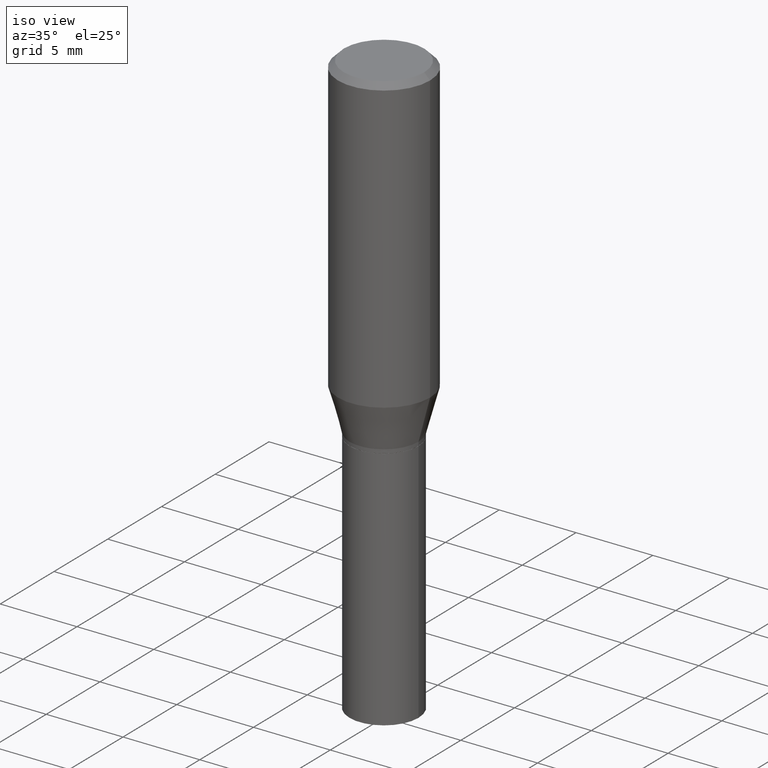
[diagram: clean part render]
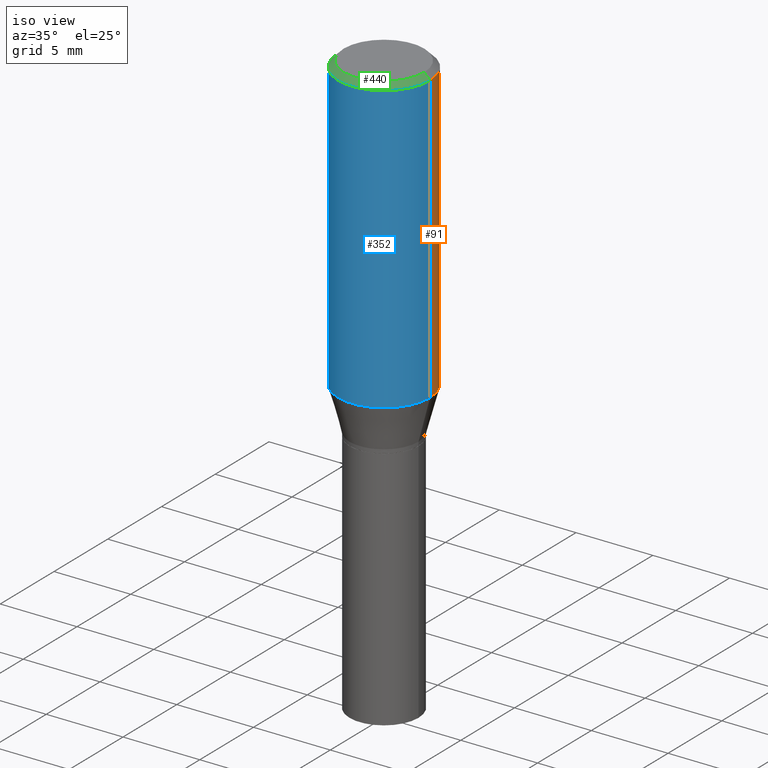
[diagram: same view with three faces highlighted in distinct colors, each labeled with its STEP entity id]
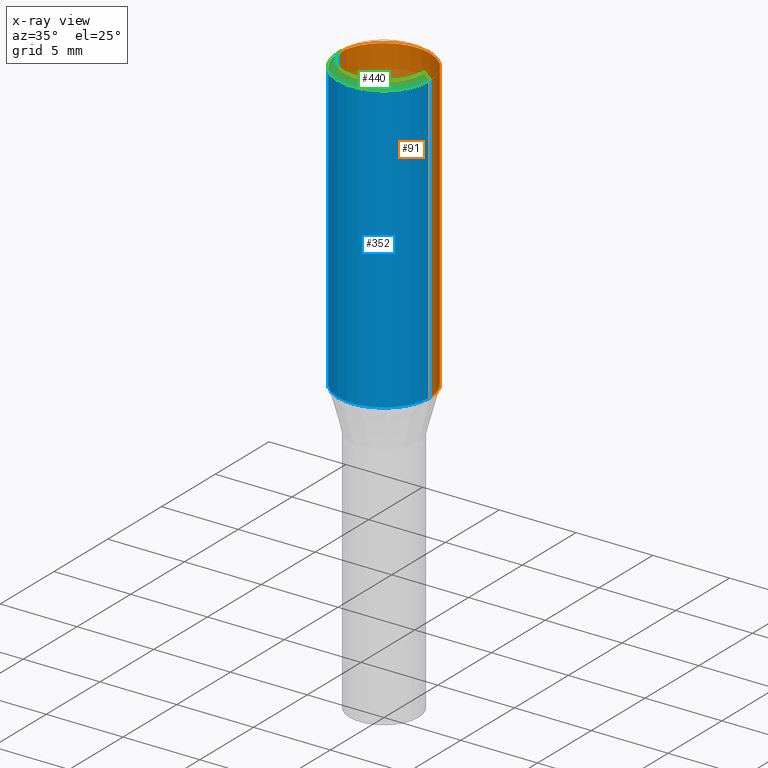
[diagram: x-ray of the same camera — body ghosted, the three highlighted faces saturated]
A machine part, iso view with three faces highlighted in distinct colors.
The next image is the same camera in x-ray (body ghosted, the three faces saturated) — at least one of them is partly hidden behind the body in this view.
Their STEP definitions:

[orange] entity #91 — the highlighted cylindrical surface (partial cylindrical patch) has radius 2.9997 mm, axis along (-0, 0, 1).
#8 = AXIS2_PLACEMENT_3D ( 'NONE', #69, #457, #459 ) ;
#18 = CIRCLE ( 'NONE', #329, 0.1180999999999999966 ) ;
#25 = CIRCLE ( 'NONE', #77, 0.1180999999999999966 ) ;
#41 = EDGE_CURVE ( 'NONE', #132, #335, #18, .T. ) ;
#55 = VERTEX_POINT ( 'NONE', #314 ) ;
#56 = LINE ( 'NONE', #359, #330 ) ;
#69 = CARTESIAN_POINT ( 'NONE',  ( 0.000000000000000000, 0.000000000000000000, 0.000000000000000000 ) ) ;
#77 = AXIS2_PLACEMENT_3D ( 'NONE', #436, #360, #125 ) ;
#87 = DIRECTION ( 'NONE',  ( -2.445468806185136877E-29, 3.491481338843145188E-15, 1.000000000000000000 ) ) ;
#91 = ADVANCED_FACE ( 'NONE', ( #109 ), #243, .T. ) ;
#109 = FACE_OUTER_BOUND ( 'NONE', #413, .T. ) ;
#125 = DIRECTION ( 'NONE',  ( 1.000000000000000000, -6.982962677686265133E-15, 0.000000000000000000 ) ) ;
#132 = VERTEX_POINT ( 'NONE', #183 ) ;
#134 = ORIENTED_EDGE ( 'NONE', *, *, #371, .T. ) ;
#159 = VECTOR ( 'NONE', #265, 39.37007874015748143 ) ;
#167 = CARTESIAN_POINT ( 'NONE',  ( 0.1180999999999999966, -8.246878922347480654E-16, 5.758764772215000440E-30 ) ) ;
#183 = CARTESIAN_POINT ( 'NONE',  ( 0.1180999999999999966, -8.770601123173952432E-16, -0.01499999999999999944 ) ) ;
#192 = VERTEX_POINT ( 'NONE', #350 ) ;
#208 = CARTESIAN_POINT ( 'NONE',  ( 3.668203209277705088E-31, -5.237222008264718399E-17, -0.01499999999999999944 ) ) ;
#243 = CYLINDRICAL_SURFACE ( 'NONE', #8, 0.1180999999999999966 ) ;
#265 = DIRECTION ( 'NONE',  ( -2.445468806185136877E-29, 3.491481338843145188E-15, 1.000000000000000000 ) ) ;
#283 = DIRECTION ( 'NONE',  ( 1.000000000000000000, -6.982962677686266711E-15, 0.000000000000000000 ) ) ;
#306 = ORIENTED_EDGE ( 'NONE', *, *, #392, .F. ) ;
#314 = CARTESIAN_POINT ( 'NONE',  ( -0.1180999999999999966, -1.779475748974195504E-15, -0.7500045011767182412 ) ) ;
#329 = AXIS2_PLACEMENT_3D ( 'NONE', #208, #449, #283 ) ;
#330 = VECTOR ( 'NONE', #87, 39.37007874015748143 ) ;
#335 = VERTEX_POINT ( 'NONE', #358 ) ;
#350 = CARTESIAN_POINT ( 'NONE',  ( 0.1180999999999999966, -3.443314612141622358E-15, -0.7500045011767182412 ) ) ;
#358 = CARTESIAN_POINT ( 'NONE',  ( -0.1180999999999999966, -4.963484990620821929E-16, -0.01499999999999999944 ) ) ;
#359 = CARTESIAN_POINT ( 'NONE',  ( -0.1180999999999999966, 8.391509709326782957E-16, -5.809262341591043784E-30 ) ) ;
#360 = DIRECTION ( 'NONE',  ( -2.445468806185136597E-29, 3.491481338843145583E-15, 1.000000000000000000 ) ) ;
#371 = EDGE_CURVE ( 'NONE', #192, #55, #25, .T. ) ;
#392 = EDGE_CURVE ( 'NONE', #192, #132, #403, .T. ) ;
#397 = EDGE_CURVE ( 'NONE', #55, #335, #56, .T. ) ;
#400 = ORIENTED_EDGE ( 'NONE', *, *, #397, .T. ) ;
#403 = LINE ( 'NONE', #167, #159 ) ;
#413 = EDGE_LOOP ( 'NONE', ( #134, #400, #435, #306 ) ) ;
#435 = ORIENTED_EDGE ( 'NONE', *, *, #41, .F. ) ;
#436 = CARTESIAN_POINT ( 'NONE',  ( 1.834112612126108016E-29, -2.618626719906874095E-15, -0.7500045011767182412 ) ) ;
#449 = DIRECTION ( 'NONE',  ( -2.445468806185136597E-29, 3.491481338843145583E-15, 1.000000000000000000 ) ) ;
#457 = DIRECTION ( 'NONE',  ( -2.445468806185136597E-29, 3.491481338843145583E-15, 1.000000000000000000 ) ) ;
#459 = DIRECTION ( 'NONE',  ( 1.000000000000000000, -6.982962677686266711E-15, 4.876176775795936353E-29 ) ) ;

[blue] entity #352 — the highlighted cylindrical surface (partial cylindrical patch) has radius 2.9997 mm, axis along (-0, 0, 1).
#38 = AXIS2_PLACEMENT_3D ( 'NONE', #224, #54, #199 ) ;
#47 = CYLINDRICAL_SURFACE ( 'NONE', #38, 0.1180999999999999966 ) ;
#54 = DIRECTION ( 'NONE',  ( -2.445468806185136597E-29, 3.491481338843145583E-15, 1.000000000000000000 ) ) ;
#55 = VERTEX_POINT ( 'NONE', #314 ) ;
#56 = LINE ( 'NONE', #359, #330 ) ;
#59 = ORIENTED_EDGE ( 'NONE', *, *, #316, .T. ) ;
#62 = ORIENTED_EDGE ( 'NONE', *, *, #397, .F. ) ;
#87 = DIRECTION ( 'NONE',  ( -2.445468806185136877E-29, 3.491481338843145188E-15, 1.000000000000000000 ) ) ;
#89 = AXIS2_PLACEMENT_3D ( 'NONE', #203, #434, #336 ) ;
#132 = VERTEX_POINT ( 'NONE', #183 ) ;
#159 = VECTOR ( 'NONE', #265, 39.37007874015748143 ) ;
#167 = CARTESIAN_POINT ( 'NONE',  ( 0.1180999999999999966, -8.246878922347480654E-16, 5.758764772215000440E-30 ) ) ;
#183 = CARTESIAN_POINT ( 'NONE',  ( 0.1180999999999999966, -8.770601123173952432E-16, -0.01499999999999999944 ) ) ;
#190 = AXIS2_PLACEMENT_3D ( 'NONE', #319, #221, #257 ) ;
#192 = VERTEX_POINT ( 'NONE', #350 ) ;
#199 = DIRECTION ( 'NONE',  ( 1.000000000000000000, -6.982962677686266711E-15, 4.876176775795936353E-29 ) ) ;
#203 = CARTESIAN_POINT ( 'NONE',  ( 3.668203209277705088E-31, -5.237222008264718399E-17, -0.01499999999999999944 ) ) ;
#204 = ORIENTED_EDGE ( 'NONE', *, *, #392, .T. ) ;
#221 = DIRECTION ( 'NONE',  ( -2.445468806185136597E-29, 3.491481338843145583E-15, 1.000000000000000000 ) ) ;
#224 = CARTESIAN_POINT ( 'NONE',  ( 0.000000000000000000, 0.000000000000000000, 0.000000000000000000 ) ) ;
#257 = DIRECTION ( 'NONE',  ( 1.000000000000000000, -6.982962677686265133E-15, 0.000000000000000000 ) ) ;
#265 = DIRECTION ( 'NONE',  ( -2.445468806185136877E-29, 3.491481338843145188E-15, 1.000000000000000000 ) ) ;
#266 = ORIENTED_EDGE ( 'NONE', *, *, #427, .F. ) ;
#271 = FACE_OUTER_BOUND ( 'NONE', #333, .T. ) ;
#314 = CARTESIAN_POINT ( 'NONE',  ( -0.1180999999999999966, -1.779475748974195504E-15, -0.7500045011767182412 ) ) ;
#316 = EDGE_CURVE ( 'NONE', #55, #192, #321, .T. ) ;
#319 = CARTESIAN_POINT ( 'NONE',  ( 1.834112612126108016E-29, -2.618626719906874095E-15, -0.7500045011767182412 ) ) ;
#321 = CIRCLE ( 'NONE', #190, 0.1180999999999999966 ) ;
#330 = VECTOR ( 'NONE', #87, 39.37007874015748143 ) ;
#333 = EDGE_LOOP ( 'NONE', ( #62, #59, #204, #266 ) ) ;
#335 = VERTEX_POINT ( 'NONE', #358 ) ;
#336 = DIRECTION ( 'NONE',  ( 1.000000000000000000, -6.982962677686266711E-15, 0.000000000000000000 ) ) ;
#350 = CARTESIAN_POINT ( 'NONE',  ( 0.1180999999999999966, -3.443314612141622358E-15, -0.7500045011767182412 ) ) ;
#352 = ADVANCED_FACE ( 'NONE', ( #271 ), #47, .T. ) ;
#358 = CARTESIAN_POINT ( 'NONE',  ( -0.1180999999999999966, -4.963484990620821929E-16, -0.01499999999999999944 ) ) ;
#359 = CARTESIAN_POINT ( 'NONE',  ( -0.1180999999999999966, 8.391509709326782957E-16, -5.809262341591043784E-30 ) ) ;
#364 = CIRCLE ( 'NONE', #89, 0.1180999999999999966 ) ;
#392 = EDGE_CURVE ( 'NONE', #192, #132, #403, .T. ) ;
#397 = EDGE_CURVE ( 'NONE', #55, #335, #56, .T. ) ;
#403 = LINE ( 'NONE', #167, #159 ) ;
#427 = EDGE_CURVE ( 'NONE', #335, #132, #364, .T. ) ;
#434 = DIRECTION ( 'NONE',  ( -2.445468806185136597E-29, 3.491481338843145583E-15, 1.000000000000000000 ) ) ;

[green] entity #440 — the highlighted conical surface has half-angle 45 deg.
#5 = DIRECTION ( 'NONE',  ( 0.7071067811865516806, -7.319954787623268667E-15, -0.7071067811865431318 ) ) ;
#7 = ORIENTED_EDGE ( 'NONE', *, *, #451, .F. ) ;
#10 = CARTESIAN_POINT ( 'NONE',  ( 0.1180999999999999966, -8.625970336194650129E-16, -0.01499999999999999944 ) ) ;
#17 = FACE_OUTER_BOUND ( 'NONE', #233, .T. ) ;
#57 = VERTEX_POINT ( 'NONE', #112 ) ;
#83 = LINE ( 'NONE', #10, #251 ) ;
#89 = AXIS2_PLACEMENT_3D ( 'NONE', #203, #434, #336 ) ;
#97 = ORIENTED_EDGE ( 'NONE', *, *, #408, .T. ) ;
#107 = EDGE_CURVE ( 'NONE', #57, #370, #294, .T. ) ;
#112 = CARTESIAN_POINT ( 'NONE',  ( -0.1031000000000000111, 7.461295621107772493E-16, -1.900413116462341961E-16 ) ) ;
#132 = VERTEX_POINT ( 'NONE', #183 ) ;
#133 = DIRECTION ( 'NONE',  ( -1.000000000000000000, 6.982962677686266711E-15, 0.000000000000000000 ) ) ;
#154 = DIRECTION ( 'NONE',  ( -2.445468806185136597E-29, 3.491481338843145583E-15, 1.000000000000000000 ) ) ;
#156 = DIRECTION ( 'NONE',  ( 2.445468806185136597E-29, -3.491481338843145583E-15, -1.000000000000000000 ) ) ;
#163 = DIRECTION ( 'NONE',  ( -0.7071067811865516806, 2.468850131082300842E-15, -0.7071067811865431318 ) ) ;
#172 = VECTOR ( 'NONE', #163, 39.37007874015748854 ) ;
#183 = CARTESIAN_POINT ( 'NONE',  ( 0.1180999999999999966, -8.770601123173952432E-16, -0.01499999999999999944 ) ) ;
#195 = CARTESIAN_POINT ( 'NONE',  ( 3.668203209277705088E-31, -5.237222008264718399E-17, -0.01499999999999999944 ) ) ;
#203 = CARTESIAN_POINT ( 'NONE',  ( 3.668203209277705088E-31, -5.237222008264718399E-17, -0.01499999999999999944 ) ) ;
#205 = AXIS2_PLACEMENT_3D ( 'NONE', #195, #156, #133 ) ;
#233 = EDGE_LOOP ( 'NONE', ( #7, #308, #97, #274 ) ) ;
#251 = VECTOR ( 'NONE', #5, 39.37007874015748854 ) ;
#274 = ORIENTED_EDGE ( 'NONE', *, *, #427, .T. ) ;
#289 = CONICAL_SURFACE ( 'NONE', #205, 0.1180999999999999966, 0.7853981633974543852 ) ;
#294 = CIRCLE ( 'NONE', #363, 0.1031000000000000111 ) ;
#308 = ORIENTED_EDGE ( 'NONE', *, *, #107, .F. ) ;
#318 = CARTESIAN_POINT ( 'NONE',  ( 4.647400995173613138E-45, -6.635256932220833331E-31, -1.900413116462290932E-16 ) ) ;
#326 = CARTESIAN_POINT ( 'NONE',  ( -0.1180999999999999966, 7.723156721521009862E-16, -0.01499999999999999944 ) ) ;
#335 = VERTEX_POINT ( 'NONE', #358 ) ;
#336 = DIRECTION ( 'NONE',  ( 1.000000000000000000, -6.982962677686266711E-15, 0.000000000000000000 ) ) ;
#358 = CARTESIAN_POINT ( 'NONE',  ( -0.1180999999999999966, -4.963484990620821929E-16, -0.01499999999999999944 ) ) ;
#362 = LINE ( 'NONE', #326, #172 ) ;
#363 = AXIS2_PLACEMENT_3D ( 'NONE', #318, #154, #463 ) ;
#364 = CIRCLE ( 'NONE', #89, 0.1180999999999999966 ) ;
#370 = VERTEX_POINT ( 'NONE', #399 ) ;
#399 = CARTESIAN_POINT ( 'NONE',  ( 0.1031000000000000111, -7.849571885948552706E-16, -1.900413116462238423E-16 ) ) ;
#408 = EDGE_CURVE ( 'NONE', #57, #335, #362, .T. ) ;
#427 = EDGE_CURVE ( 'NONE', #335, #132, #364, .T. ) ;
#434 = DIRECTION ( 'NONE',  ( -2.445468806185136597E-29, 3.491481338843145583E-15, 1.000000000000000000 ) ) ;
#440 = ADVANCED_FACE ( 'NONE', ( #17 ), #289, .T. ) ;
#451 = EDGE_CURVE ( 'NONE', #370, #132, #83, .T. ) ;
#463 = DIRECTION ( 'NONE',  ( 1.000000000000000000, -6.982962677686265922E-15, 4.883331232093008327E-29 ) ) ;